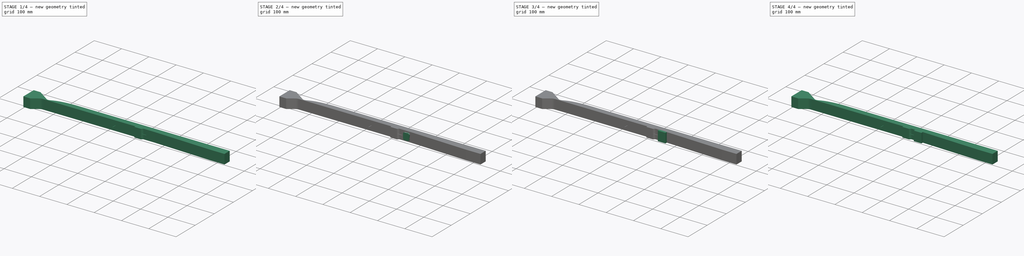
[diagram: build sequence overview — one tinted view per stage of 4, left to right]
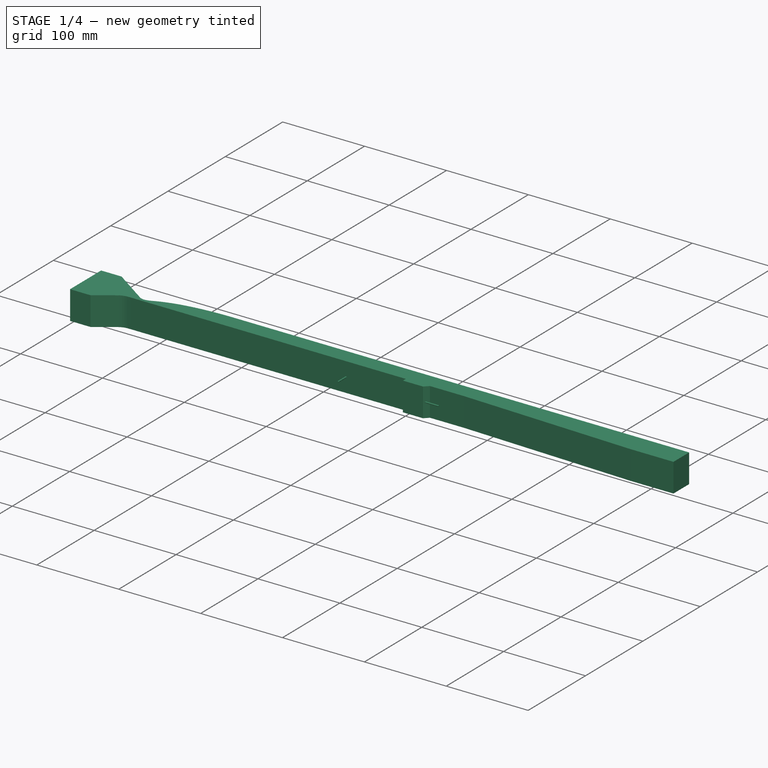
[diagram: stage 1 of 4 — iso view after this stage's code; geometry added in this stage tinted green]
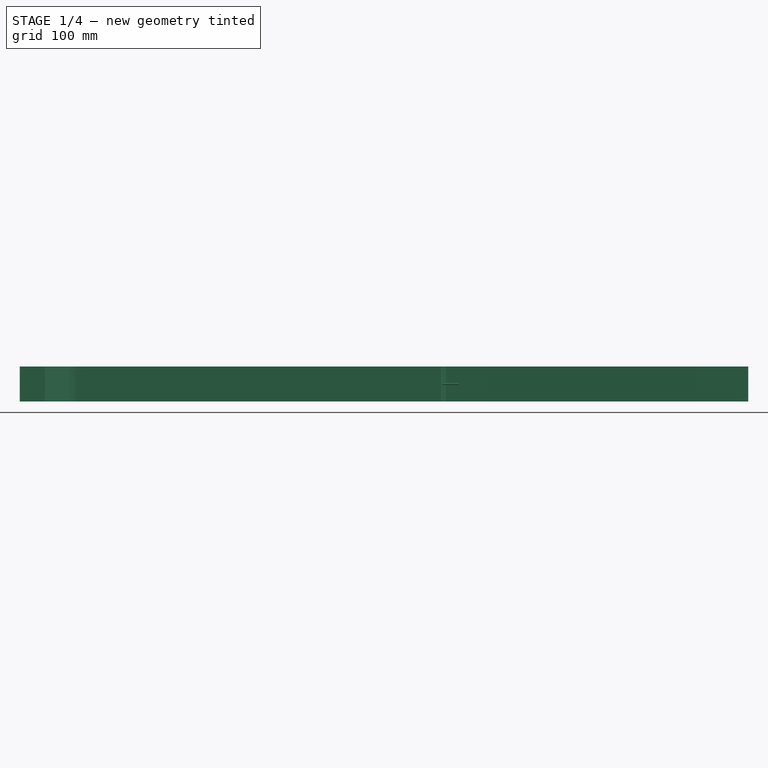
[diagram: stage 1 of 4 — front view after this stage's code; geometry added in this stage tinted green]
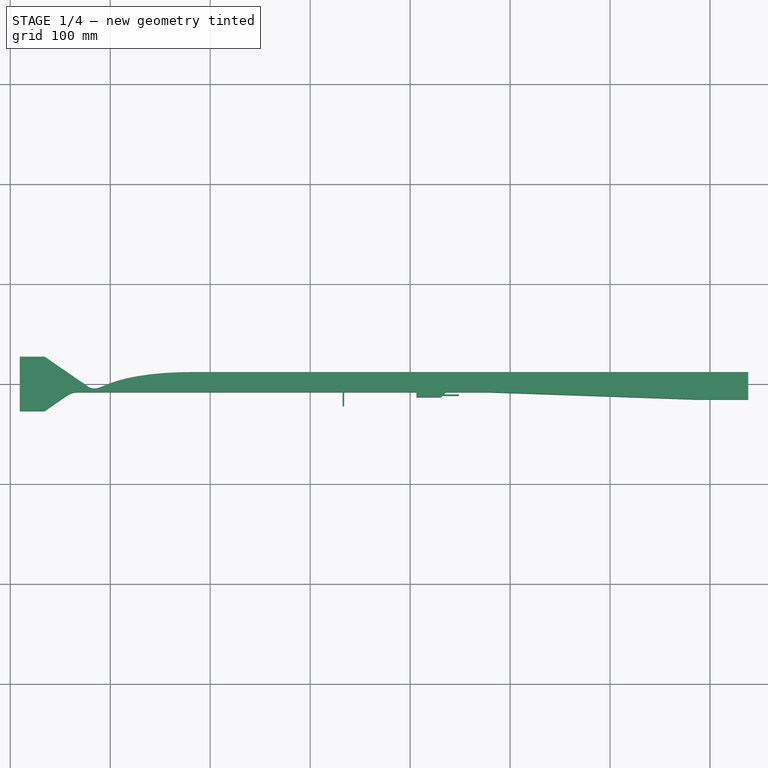
[diagram: stage 1 of 4 — top view after this stage's code; geometry added in this stage tinted green]
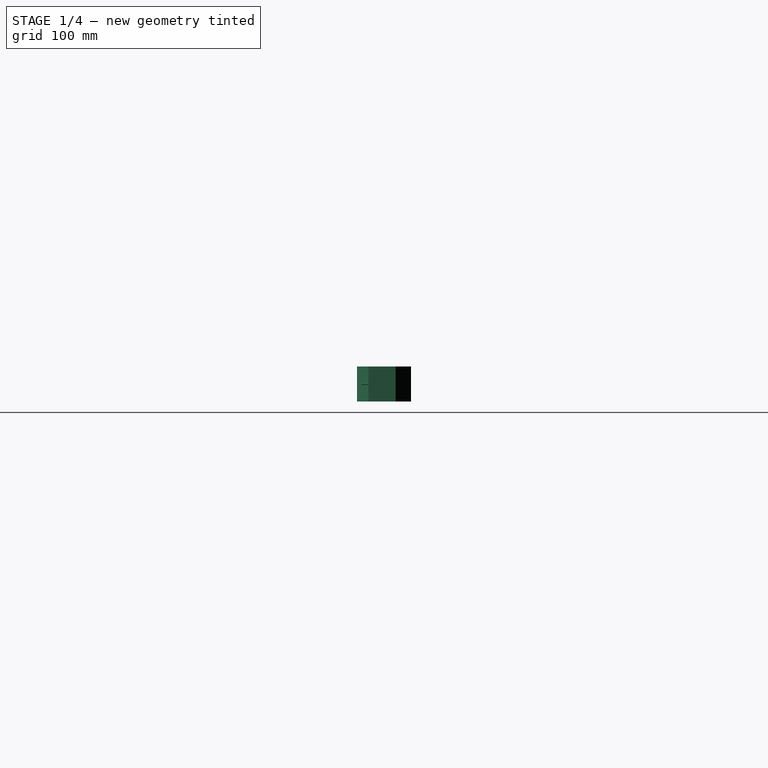
[diagram: stage 1 of 4 — right view after this stage's code; geometry added in this stage tinted green]
FCSTD DOCUMENT  (FreeCAD 0.20R29603 (Git))
Label: actii
License: All rights reserved
LicenseURL: http://en.wikipedia.org/wiki/All_rights_reserved
objects: App::Link×3, Part::Cut×3, Part::Cylinder×2, Part::Box×2, Sketcher::SketchObject×1, PartDesign::Pad×1, PartDesign::Body×1, Part::Fillet×1, Part::MultiFuse×1, Part::FeaturePython×1, Part::Feature×1
note: 15 computed .brp shape members not serialized (recipe doc carries the construction recipe); baked Part::Feature solids carry a one-line shape summary decoded from their .brp

FEATURE [Sketcher::SketchObject] Sketch002  label="Fluid2DProfile001"
  FullyConstrained = true
  MapMode = 5
  Support = -> [XY_Plane001]
  sketch-geometry (16):
    g0: LineSegment StartX=209.437 StartY=27.0645 StartZ=0 EndX=234.437 EndY=27.0645 EndZ=0
    g1: BSplineCurve PolesCount=155 KnotsCount=153 Degree=3 IsPeriodic=0
    g2: LineSegment StartX=209.437 StartY=-27.0645 StartZ=0 EndX=234.437 EndY=-27.0645 EndZ=0
    g3: BSplineCurve PolesCount=28 KnotsCount=26 Degree=3 IsPeriodic=0
    g4: LineSegment StartX=383.28 StartY=11.6755 StartZ=0 EndX=938.28 EndY=11.6755 EndZ=0
    g5: LineSegment StartX=606.28 StartY=-8.32451 StartZ=0 EndX=606.28 EndY=-13.3245 EndZ=0
    g6: LineSegment StartX=606.28 StartY=-13.3245 StartZ=0 EndX=630.78 EndY=-13.3245 EndZ=0
    g7: LineSegment StartX=630.78 StartY=-13.3245 StartZ=0 EndX=635.78 EndY=-8.32451 EndZ=0
    g8: LineSegment StartX=635.78 StartY=-8.32451 StartZ=0 EndX=677.78 EndY=-8.32451 EndZ=0
    g9: LineSegment StartX=677.78 StartY=-8.32451 StartZ=0 EndX=885.78 EndY=-15.588 EndZ=0
    g10: LineSegment StartX=938.28 StartY=11.6755 StartZ=0 EndX=938.28 EndY=-15.588 EndZ=0
    g11: LineSegment StartX=885.78 StartY=-15.588 StartZ=0 EndX=938.28 EndY=-15.588 EndZ=0
    g12: LineSegment StartX=274.611 StartY=-8.32451 StartZ=0 EndX=606.28 EndY=-8.32451 EndZ=0
    g13: LineSegment StartX=269.437 StartY=2.95465 StartZ=0 EndX=234.437 EndY=27.0645 EndZ=0
    g14: LineSegment StartX=209.437 StartY=27.0645 StartZ=0 EndX=209.437 EndY=-27.0645 EndZ=0
    g15: LineSegment StartX=234.437 StartY=-27.0645 StartZ=0 EndX=254.652 EndY=-13.0512 EndZ=0
  constraints (44):
    c: Block(g1)
    c: Block(g3)
    c: DistanceX(g1,g4) = 555  'iso+cav+comb'
    c: Coincident(g4,g10)
    c: Vertical(g10)
    c: Coincident(g11,g10)
    c: Horizontal(g11)
    c: Coincident(g9,g8)
    c: Horizontal(g8)
    c: Horizontal(g6)
    c: Vertical(g5)
    c: Coincident(g11,g9)
    c: DistanceY(g5,g1) = 20
    c: Coincident(g8,g7)
    c: Horizontal(g4)
    c: DistanceX(g1,g5) = 223
    c: Coincident(g5,g6)
    c: DistanceX(g5,g6) = 24.5
    c: Coincident(g6,g7)
    c: DistanceX(g6,g7) = 5
    c: DistanceX(g5,g8) = 71.5
    c: Angle(g9,g4) = 0.0349066
    c: DistanceY(g5,g5) = 5
    c: DistanceY(g6,g7) = 5
    c: Coincident(g4,g1)
    c: DistanceX(g8,g9) = 208
    c: DistanceX(g0,g1) = 35
    c: DistanceX(g0,g0) = 25
    c: DistanceX(g2,g2) = 25
    c: Coincident(g12,g3)
    c: Coincident(g12,g5)
    c: Horizontal(g12)
    c: Coincident(g13,g1)
    c: Coincident(g13,g0)
    c: Coincident(g14,g0)
    c: Coincident(g14,g2)
    c: Vertical(g14)
    c: Coincident(g15,g2)
    c: Coincident(g15,g3)
    c: DistanceX(g2,g3) = 20.2152
    c: DistanceY(g2,g3) = 14.0133
    c: DistanceY(g1,g0) = 24.1099
    c: Horizontal(g0)
    c: Horizontal(g2)
FEATURE [PartDesign::Pad] Pad003
  AllowMultiFace = false
  Direction = (0,0,1)
  Length = 35
  Length2 = 100
  Midplane = true
  Profile = -> Sketch002
  Type = 0
FEATURE [PartDesign::Body] Body001  label="Fluid"
  Group = -> [Sketch002,Pad003]
  Origin = -> Origin001
  Tip = -> Pad003
FEATURE [Part::Cylinder] Cylinder  label="CavityInjector"
  Angle = 360
  AttacherType = Attacher::AttachEngine3D
  FirstAngle = 0
  Height = 18
  Placement = pos=(630.78,-11.3295,0) rot=(0,1,0;1.5708rad)
  Radius = 0.795
  SecondAngle = 0
  expr: .Placement.Base.x = 383.28 + 24.5 + 223
  expr: .Placement.Base.y = -8.3245 - 5 + 1.2 + 1.59 / 2
  expr: Height = 18mm
FEATURE [Part::Cylinder] Cylinder001  label="UpstreamInjector"
  Angle = 360
  AttacherType = Attacher::AttachEngine3D
  FirstAngle = 0
  Height = 15
  Placement = pos=(533.235,-7.5295,0) rot=(1,0,0;1.5708rad)
  Radius = 0.795
  SecondAngle = 0
  expr: .Placement.Base.x = 383.28 + 223 - 72.25 - 0.795
  expr: .Placement.Base.y = -8.3245 + 1.59 / 2
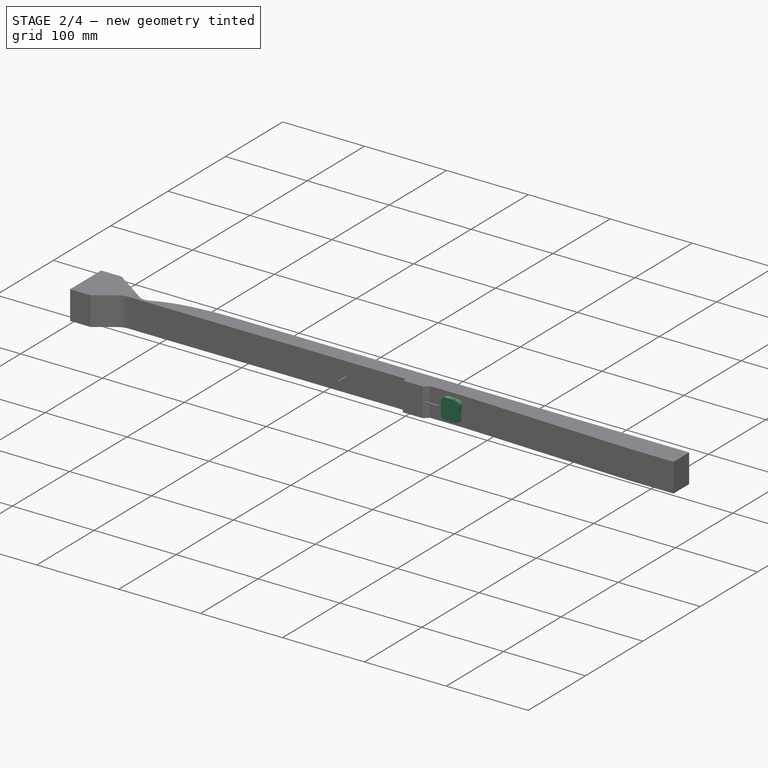
[diagram: stage 2 of 4 — iso view after this stage's code; geometry added in this stage tinted green]
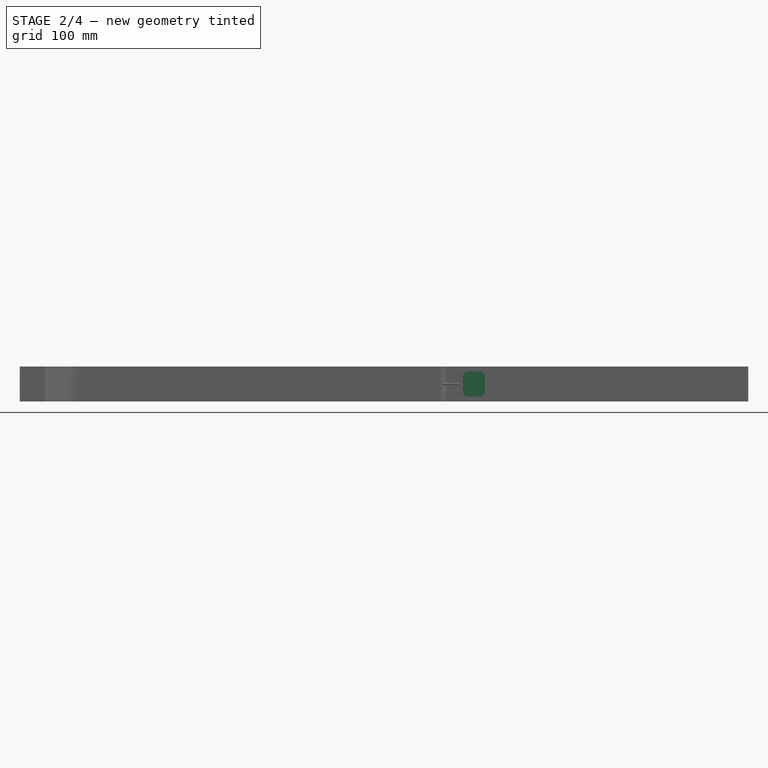
[diagram: stage 2 of 4 — front view after this stage's code; geometry added in this stage tinted green]
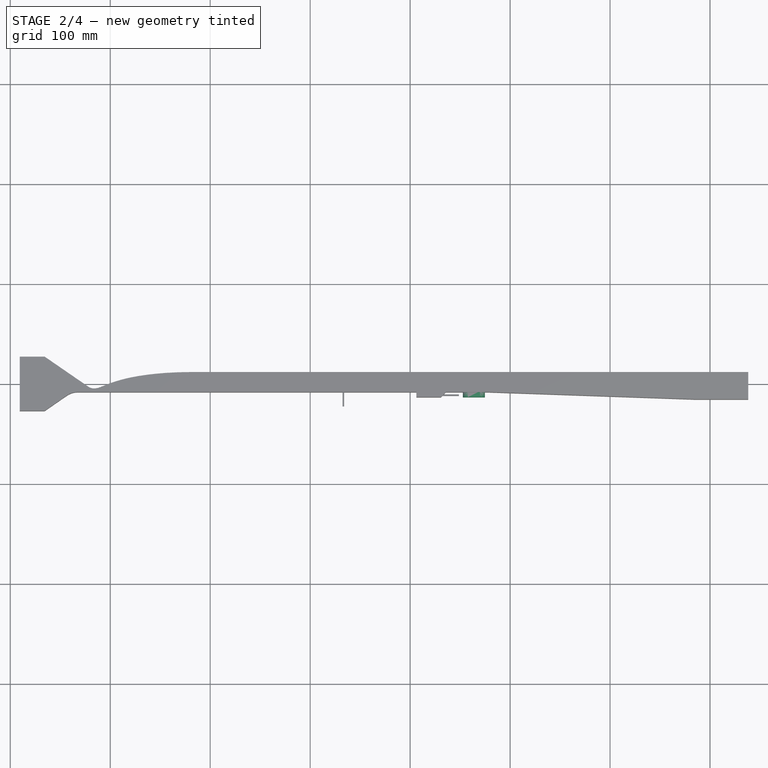
[diagram: stage 2 of 4 — top view after this stage's code; geometry added in this stage tinted green]
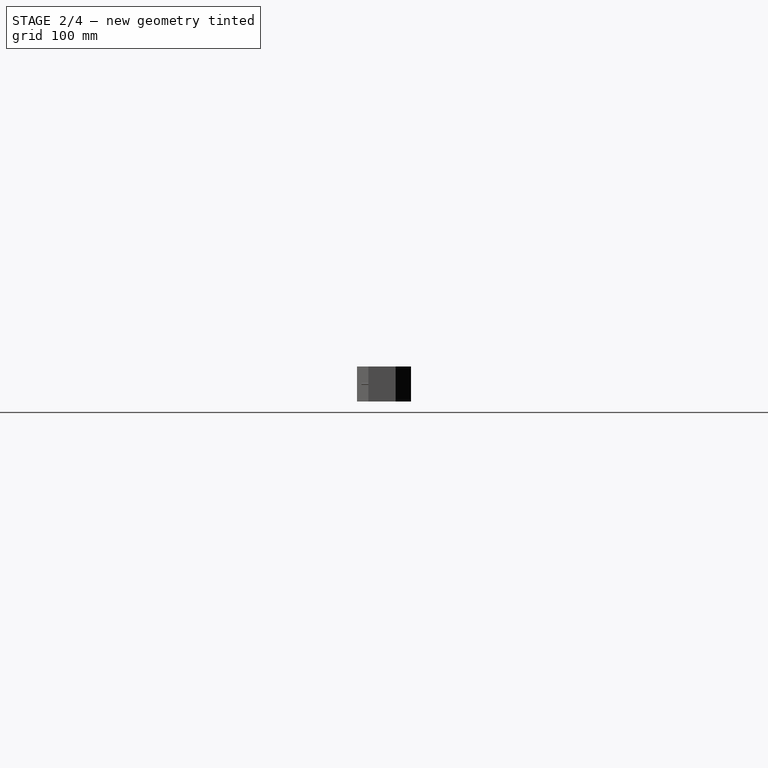
[diagram: stage 2 of 4 — right view after this stage's code; geometry added in this stage tinted green]
FEATURE [App::Link] Link  label="Fluid001"
  LinkedObject = -> Body001
FEATURE [Part::Box] Box001  label="wallSample-base"
  AttacherType = Attacher::AttachEngine3D
  Height = 25
  Length = 22
  Placement = pos=(652.78,-13.3245,-12.5) rot=(0,0,1;0rad)
  Width = 6
  expr: .Placement.Base.x = 383.28 + 24.5 + 223 + 5 + 17
  expr: .Placement.Base.y = -8.3245 - 5
  expr: .Placement.Base.z = -12.5
  expr: Width = 6
FEATURE [Part::Fillet] Fillet  label="wallSample-fillet"
  Base = -> Box001
  Edges = 4 edges r=5: [Edge2,Edge4,Edge6,Edge8]
FEATURE [Part::MultiFuse] Fusion
  Shapes = -> [Cylinder001,Cylinder,Body001]
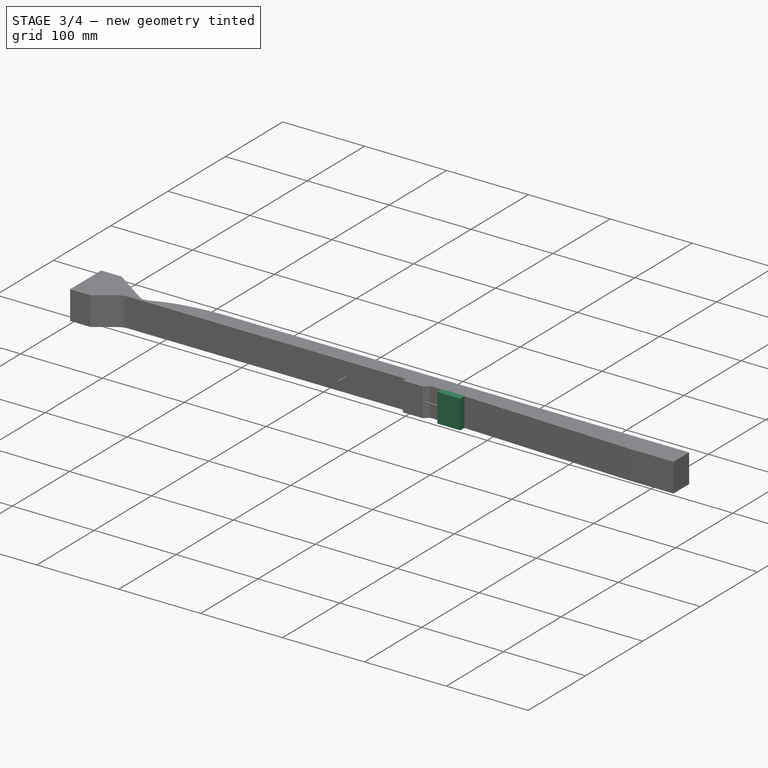
[diagram: stage 3 of 4 — iso view after this stage's code; geometry added in this stage tinted green]
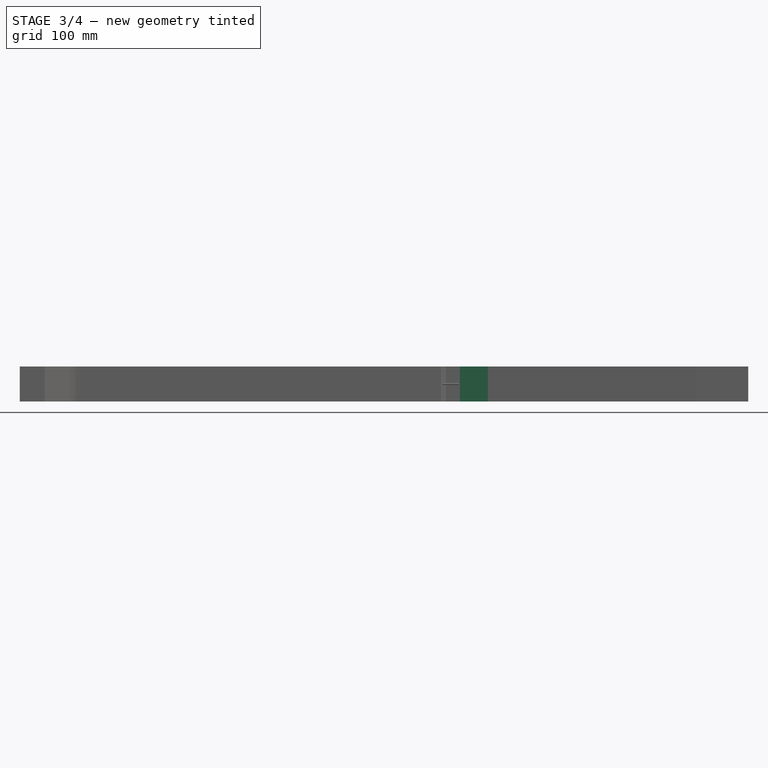
[diagram: stage 3 of 4 — front view after this stage's code; geometry added in this stage tinted green]
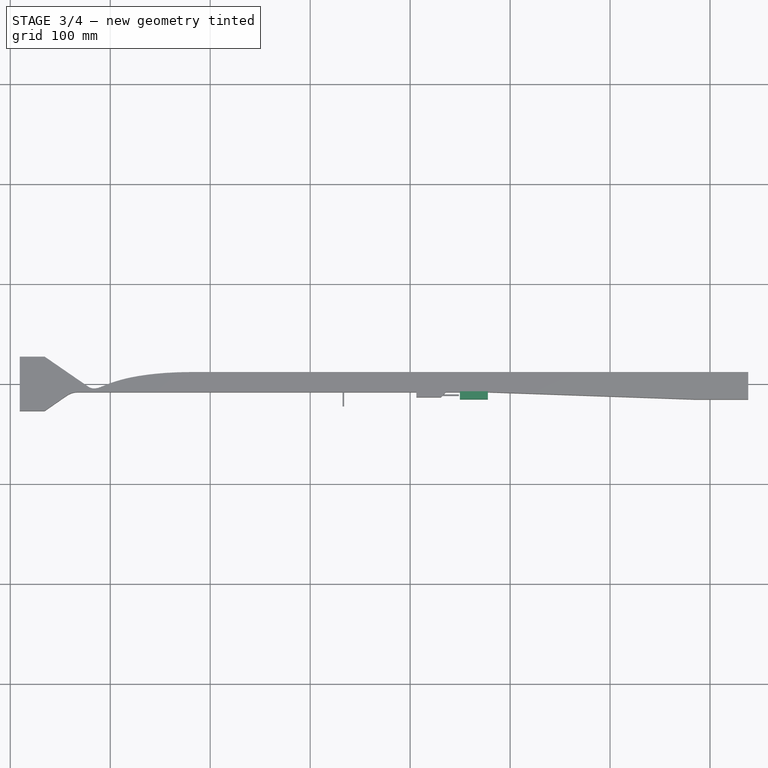
[diagram: stage 3 of 4 — top view after this stage's code; geometry added in this stage tinted green]
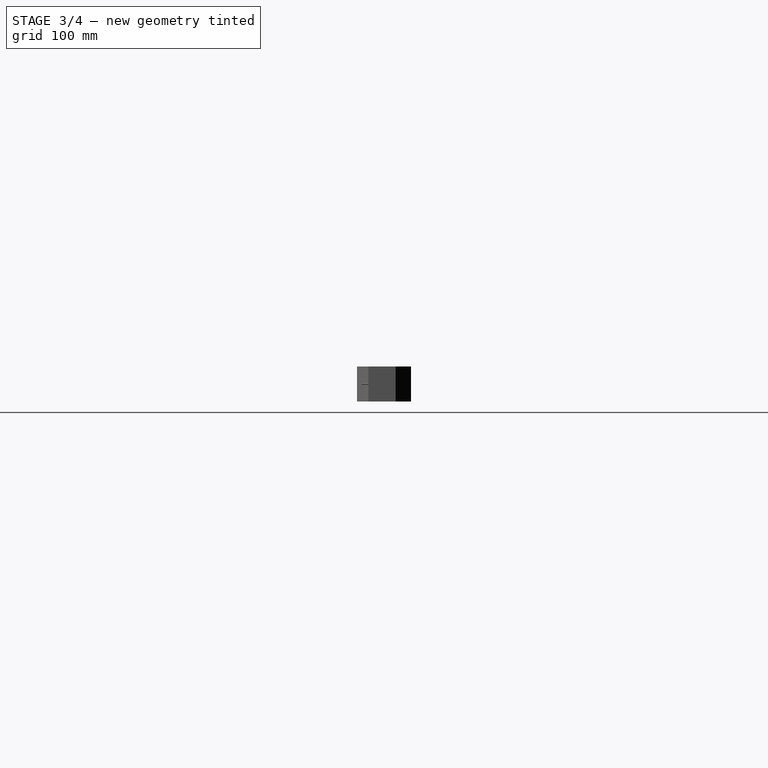
[diagram: stage 3 of 4 — right view after this stage's code; geometry added in this stage tinted green]
FEATURE [Part::Box] Box  label="wallSurround-base"
  AttacherType = Attacher::AttachEngine3D
  Height = 35
  Length = 28
  Placement = pos=(649.78,-15.3245,-17.5) rot=(0,0,1;0rad)
  Width = 8
  expr: .Placement.Base.x = 383.28 + 24.5 + 223 + 5 + 17 - 3
  expr: .Placement.Base.y = -8.3245 - 5 - 2
  expr: Width = 8
FEATURE [App::Link] Link001  label="Fluid002"
  LinkedObject = -> Body001
FEATURE [Part::Cut] Cut  label="wallSample"
  Base = -> Fillet
  Tool = -> Link001
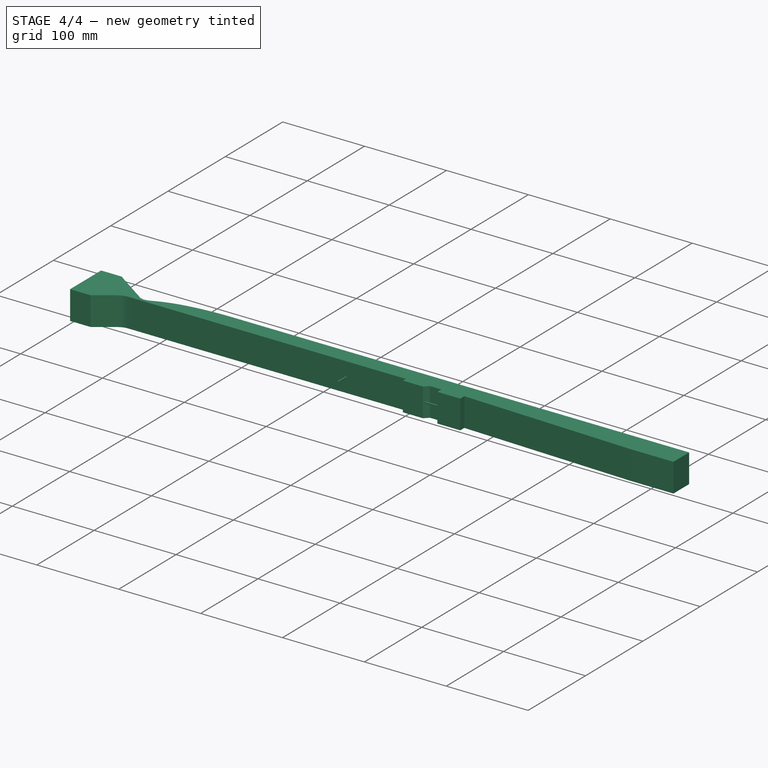
[diagram: stage 4 of 4 — iso view after this stage's code; geometry added in this stage tinted green]
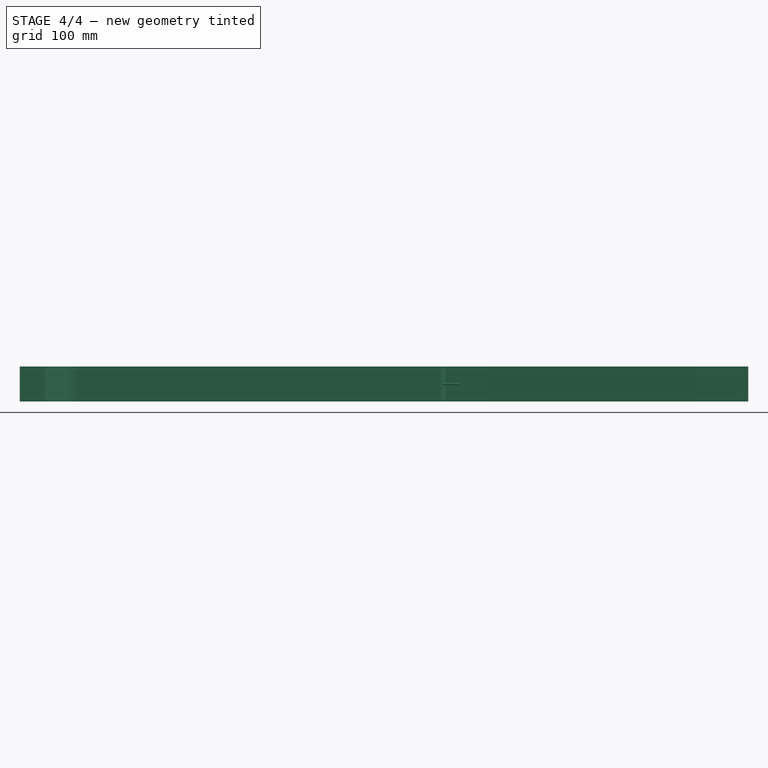
[diagram: stage 4 of 4 — front view after this stage's code; geometry added in this stage tinted green]
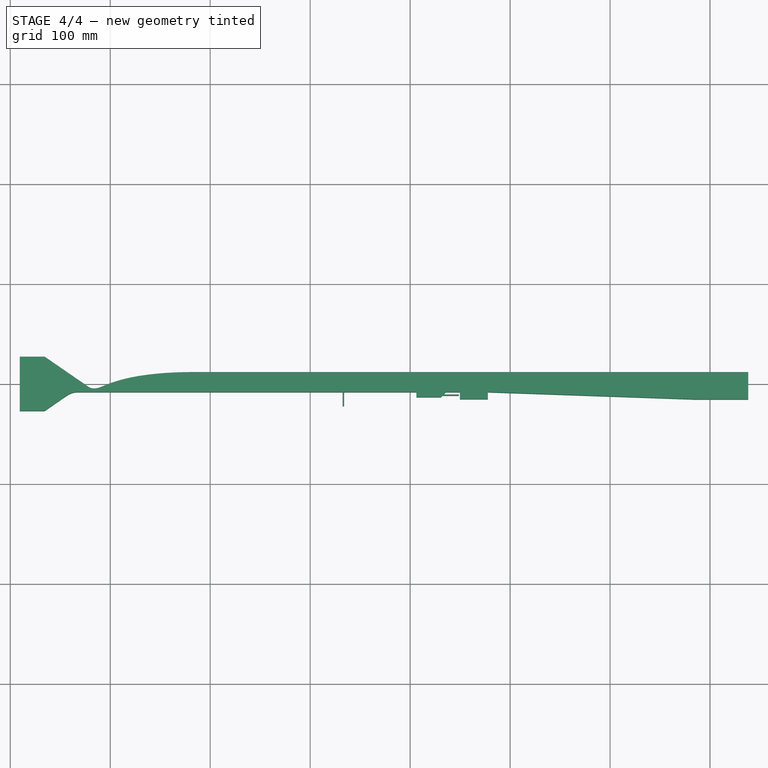
[diagram: stage 4 of 4 — top view after this stage's code; geometry added in this stage tinted green]
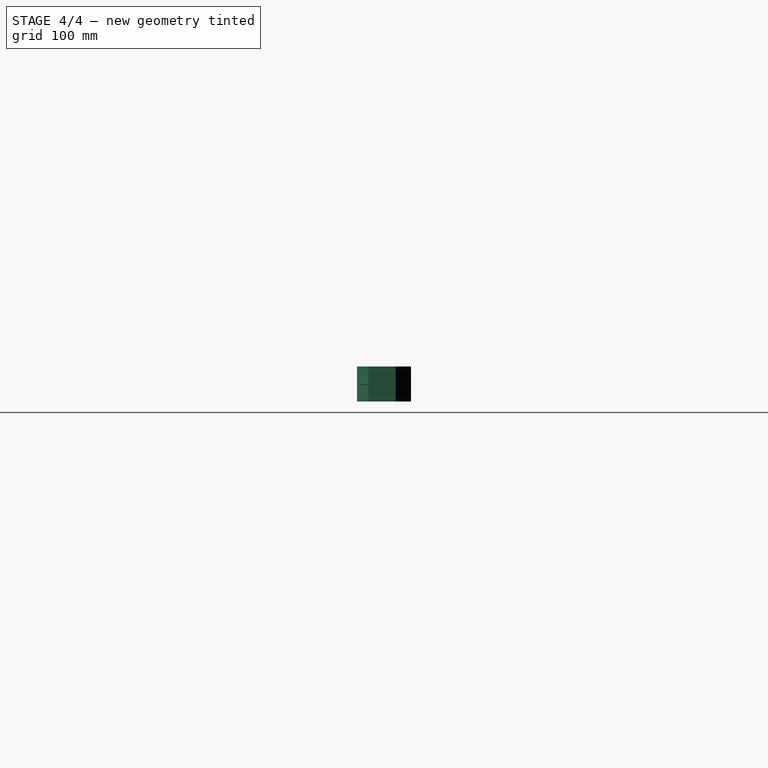
[diagram: stage 4 of 4 — right view after this stage's code; geometry added in this stage tinted green]
FEATURE [Part::Cut] Cut001  label="wallSurround-removeFluid"
  Base = -> Box
  Tool = -> Link
FEATURE [App::Link] Link002  label="wallSample001"
  LinkedObject = -> Cut
FEATURE [Part::Cut] Cut002  label="wallSurround"
  Base = -> Cut001
  Tool = -> Link002
FEATURE [Part::FeaturePython] BooleanFragments  # WARN: FeaturePython — macro-defined, semantics opaque (R4)
  Mode = 0
  Objects = -> [Cut,Cut002,Fusion]
  Tolerance = 0
FEATURE [Part::Feature] BooleanFragments_cs
  shape: bbox 728.8 x 54.13 x 0.005236 mm, 0 faces, 0 solids (baked)
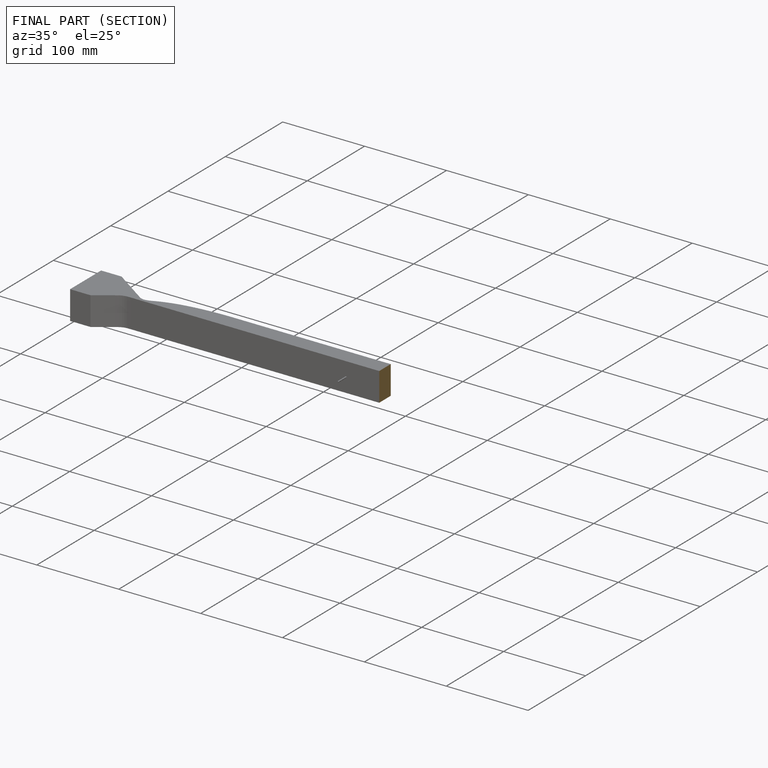
[diagram: finished part — half-section view (interior)]
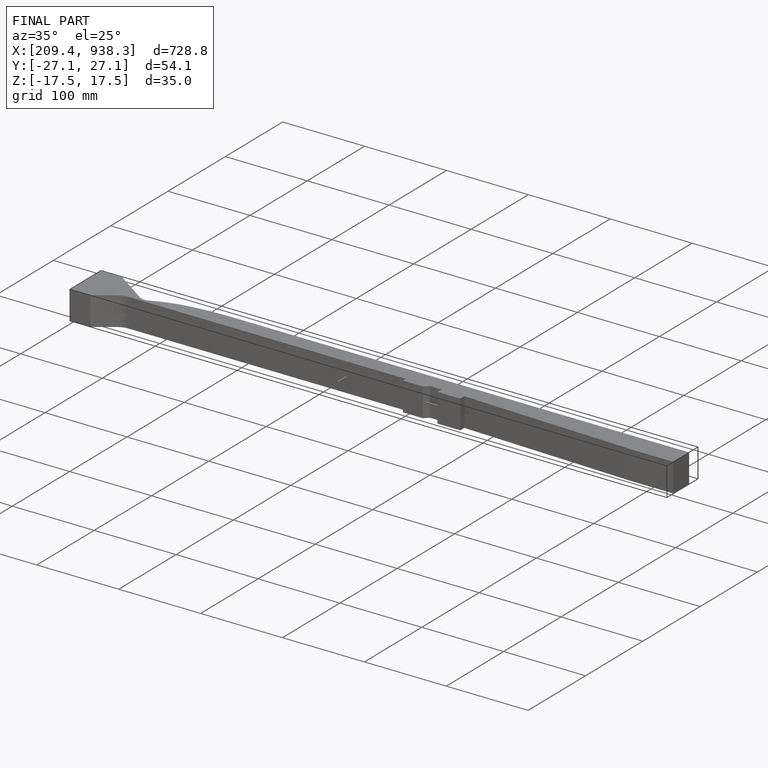
[diagram: finished part — iso view with bounding-box wireframe]
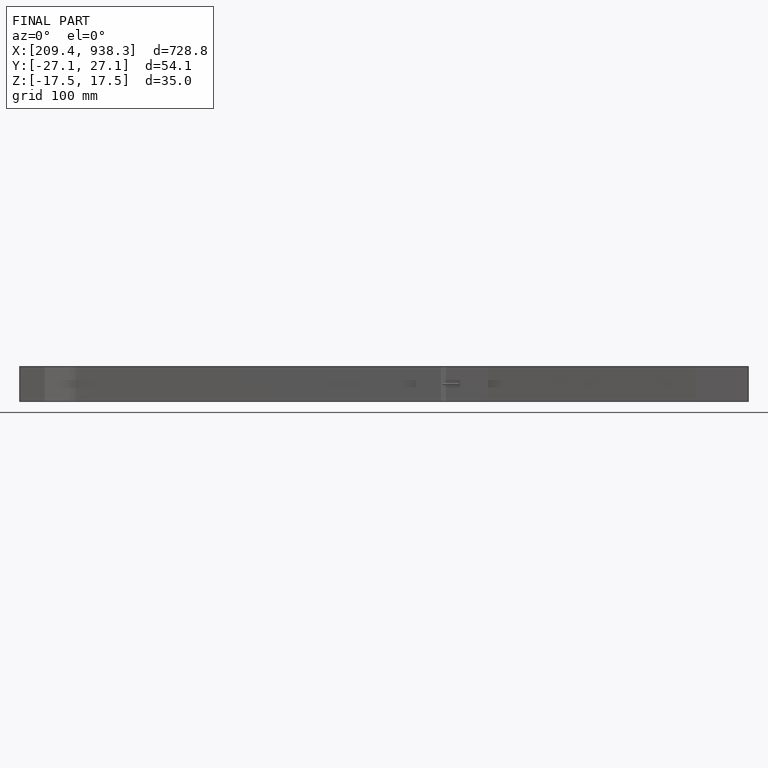
[diagram: finished part — front view with bounding-box wireframe]
